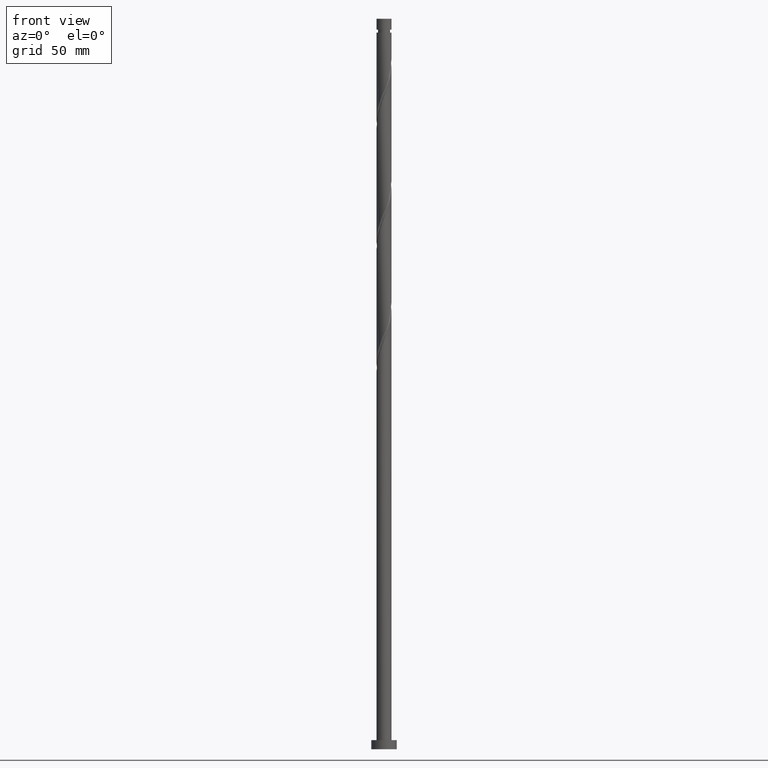
[diagram: clean part render]
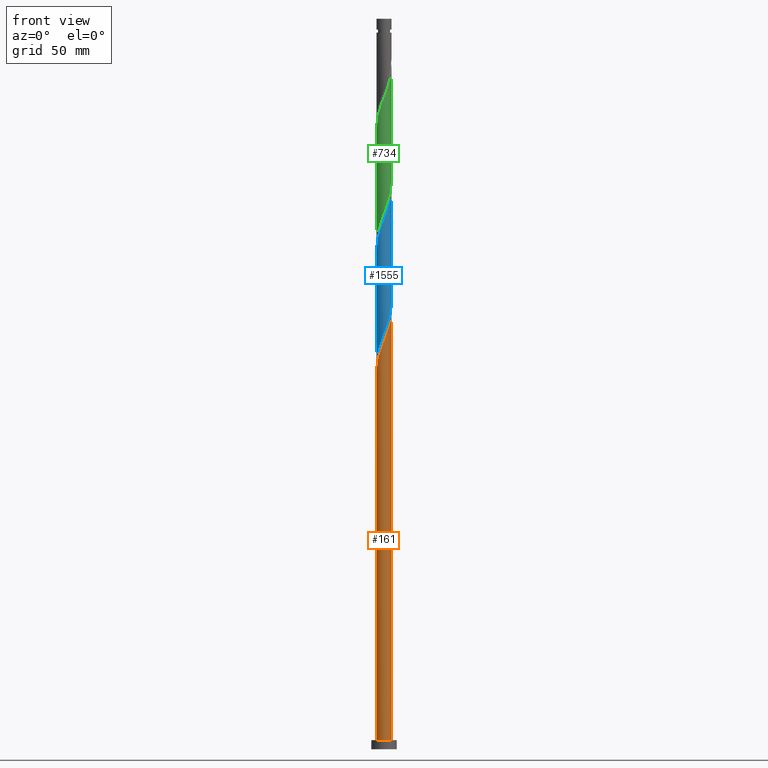
[diagram: same view with three faces highlighted in distinct colors, each labeled with its STEP entity id]
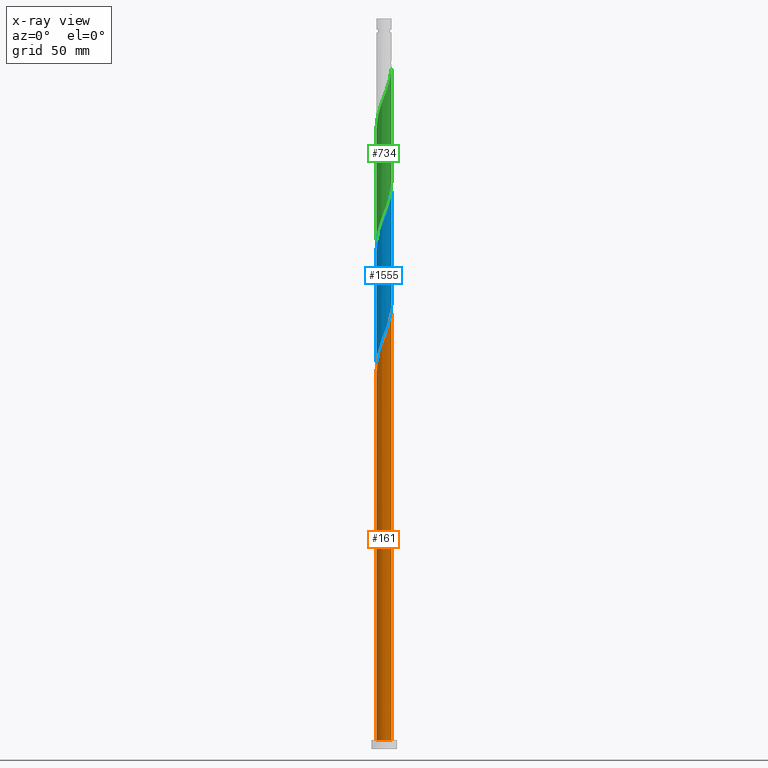
[diagram: x-ray of the same camera — body ghosted, the three highlighted faces saturated]
A machine part, front view with three faces highlighted in distinct colors.
The next image is the same camera in x-ray (body ghosted, the three faces saturated) — at least one of them is partly hidden behind the body in this view.
Their STEP definitions:

[orange] entity #161 — the highlighted cylindrical surface (edge-blend (fillet) strip) has radius 4.1 mm, axis along (-0, -0, -1).
#21 = DIRECTION ( 'NONE',  ( -0.000000000000000000, -0.000000000000000000, -1.000000000000000000 ) ) ;
#26 = CARTESIAN_POINT ( 'NONE',  ( -1.701652512147917351, -3.730198215631539860, 219.0670097021636025 ) ) ;
#33 = CARTESIAN_POINT ( 'NONE',  ( -3.910705279217199237, -1.231415534700930348, 210.1781208132747736 ) ) ;
#129 = VERTEX_POINT ( 'NONE', #1362 ) ;
#150 = AXIS2_PLACEMENT_3D ( 'NONE', #490, #193, #1756 ) ;
#161 = ADVANCED_FACE ( 'NONE', ( #1383 ), #308, .T. ) ;
#193 = DIRECTION ( 'NONE',  ( 0.000000000000000000, 0.000000000000000000, 1.000000000000000000 ) ) ;
#196 = CARTESIAN_POINT ( 'NONE',  ( -4.099999999999999645, 0.000000000000000000, 400.0000000000000000 ) ) ;
#225 = EDGE_CURVE ( 'NONE', #1762, #129, #1108, .T. ) ;
#233 = CARTESIAN_POINT ( 'NONE',  ( 3.750745190230568404, -1.711025689904787983, 235.7336763688302881 ) ) ;
#298 = VECTOR ( 'NONE', #836, 1000.000000000000000 ) ;
#308 = CYLINDRICAL_SURFACE ( 'NONE', #587, 4.099999999999999645 ) ;
#320 = EDGE_CURVE ( 'NONE', #1655, #1397, #353, .T. ) ;
#331 = CARTESIAN_POINT ( 'NONE',  ( -4.040132267286214329, -0.8203838469793626187, 209.0670097021636309 ) ) ;
#334 = CARTESIAN_POINT ( 'NONE',  ( 4.099999999999999645, 5.021051876504146399E-16, 400.0000000000000000 ) ) ;
#353 = LINE ( 'NONE', #196, #298 ) ;
#365 = CARTESIAN_POINT ( 'NONE',  ( 4.100000000000005862, -0.2335923235303701828, 239.6693084825909636 ) ) ;
#382 = CARTESIAN_POINT ( 'NONE',  ( 4.073468864823458269, -0.4656730691310441150, 239.0670097021636877 ) ) ;
#399 = ORIENTED_EDGE ( 'NONE', *, *, #469, .F. ) ;
#456 = CARTESIAN_POINT ( 'NONE',  ( -1.309592881304573853, -3.909049101608764065, 220.1781208132747452 ) ) ;
#469 = EDGE_CURVE ( 'NONE', #1655, #1762, #1350, .T. ) ;
#490 = CARTESIAN_POINT ( 'NONE',  ( 0.000000000000000000, 0.000000000000000000, 5.000000000000000000 ) ) ;
#551 = EDGE_CURVE ( 'NONE', #1397, #129, #1285, .T. ) ;
#587 = AXIS2_PLACEMENT_3D ( 'NONE', #737, #1830, #1734 ) ;
#617 = CARTESIAN_POINT ( 'NONE',  ( -3.569221300124404639, -2.017587497666035734, 212.4003430354970021 ) ) ;
#633 = CARTESIAN_POINT ( 'NONE',  ( -4.100000000000004974, -3.946381671055562687E-15, 206.9415664586421713 ) ) ;
#645 = VECTOR ( 'NONE', #21, 1000.000000000000000 ) ;
#655 = EDGE_LOOP ( 'NONE', ( #865, #399, #911, #982 ) ) ;
#665 = CARTESIAN_POINT ( 'NONE',  ( 2.730539385981639811, -3.088665254629401780, 231.2892319243858026 ) ) ;
#737 = CARTESIAN_POINT ( 'NONE',  ( 0.000000000000000000, 0.000000000000000000, 400.0000000000000000 ) ) ;
#773 = CARTESIAN_POINT ( 'NONE',  ( -0.4682381265810183213, -4.095906670124184856, 222.4003430354969737 ) ) ;
#836 = DIRECTION ( 'NONE',  ( -0.000000000000000000, -0.000000000000000000, -1.000000000000000000 ) ) ;
#865 = ORIENTED_EDGE ( 'NONE', *, *, #225, .F. ) ;
#911 = ORIENTED_EDGE ( 'NONE', *, *, #320, .T. ) ;
#924 = CARTESIAN_POINT ( 'NONE',  ( -4.100000000000004974, -0.1961603970756739534, 207.4501149842062375 ) ) ;
#935 = CARTESIAN_POINT ( 'NONE',  ( 0.3935808811299419951, -4.103753462814363040, 224.6225652577192022 ) ) ;
#950 = CARTESIAN_POINT ( 'NONE',  ( -3.071745223192162921, -2.715581205524182362, 214.6225652577192591 ) ) ;
#982 = ORIENTED_EDGE ( 'NONE', *, *, #551, .T. ) ;
#1004 = CARTESIAN_POINT ( 'NONE',  ( 4.024524653008617392, -0.8938118990468595371, 237.9558985910525166 ) ) ;
#1080 = CARTESIAN_POINT ( 'NONE',  ( 1.238198515724918902, -3.932246537185647206, 226.8447874799413739 ) ) ;
#1108 = LINE ( 'NONE', #334, #645 ) ;
#1114 = CARTESIAN_POINT ( 'NONE',  ( 3.531892677398866365, -2.082242568803238658, 234.6225652577192591 ) ) ;
#1149 = CARTESIAN_POINT ( 'NONE',  ( 4.100000000000004974, 2.481436959830391851E-15, 240.2748997919754856 ) ) ;
#1155 = CARTESIAN_POINT ( 'NONE',  ( 3.021789775274402956, -2.771062351165545223, 232.4003430354970021 ) ) ;
#1231 = CARTESIAN_POINT ( 'NONE',  ( -3.781278291148182813, -1.642447222422497077, 211.2892319243858879 ) ) ;
#1260 = CARTESIAN_POINT ( 'NONE',  ( -4.081272671962254961, -0.3914248038820652420, 207.9558985910525735 ) ) ;
#1271 = CARTESIAN_POINT ( 'NONE',  ( -4.100000000000004974, -3.946381671055562687E-15, 206.9415664586421713 ) ) ;
#1285 = CIRCLE ( 'NONE', #150, 4.099999999999999645 ) ;
#1295 = CARTESIAN_POINT ( 'NONE',  ( 4.100000000000004974, 2.481436959830391851E-15, 240.2748997919754856 ) ) ;
#1350 =( BOUNDED_CURVE ( )  B_SPLINE_CURVE ( 2, ( #633, #924, #1260, #331, #33, #1231, #617, #1862, #950, #1725, #1706, #1851, #26, #456, #1580, #773, #1548, #935, #1569, #1080, #1403, #1598, #1922, #665, #1155, #1913, #1114, #233, #1626, #1004, #382, #365, #1295 ),
 .UNSPECIFIED., .F., .T. ) 
 B_SPLINE_CURVE_WITH_KNOTS ( ( 3, 2, 2, 2, 2, 2, 2, 2, 2, 2, 2, 2, 2, 2, 2, 2, 3 ),
 ( 0.05452860127731149614, 0.05833333333333334814, 0.06666666666666665186, 0.07499999999999995559, 0.08333333333333337034, 0.09166666666666667407, 0.09999999999999997780, 0.1083333333333332815, 0.1166666666666666963, 0.1250000000000000000, 0.1333333333333333037, 0.1416666666666667185, 0.1500000000000000222, 0.1583333333333333259, 0.1666666666666666297, 0.1750000000000000444, 0.1795286012773115725 ),
 .UNSPECIFIED. ) 
 CURVE ( )  GEOMETRIC_REPRESENTATION_ITEM ( )  RATIONAL_B_SPLINE_CURVE ( ( 0.9066196499552388044, 0.9068171577856516397, 0.9090909090909504719, 0.9041108139711987457, 0.9090909090909504719, 0.9041108139711987457, 0.9090909090909504719, 0.9041108139711987457, 0.9090909090909504719, 0.9041108139711987457, 0.9090909090909504719, 0.9041108139711987457, 0.9090909090909504719, 0.9041108139711987457, 0.9090909090909504719, 0.9041108139711987457, 0.9090909090909504719, 0.9041108139711987457, 0.9090909090909504719, 0.9041108139711987457, 0.9090909090909504719, 0.9041108139711987457, 0.9090909090909504719, 0.9041108139711987457, 0.9090909090909504719, 0.9041108139711987457, 0.9090909090909504719, 0.9041108139711987457, 0.9090909090909504719, 0.9041108139711987457, 0.9090909090909504719, 0.9063845652764975780, 0.9066196499552388044 ) ) 
 REPRESENTATION_ITEM ( '' )  );
#1362 = CARTESIAN_POINT ( 'NONE',  ( 4.099999999999999645, 5.021051876504146399E-16, 5.000000000000000000 ) ) ;
#1380 = CARTESIAN_POINT ( 'NONE',  ( -4.099999999999999645, 0.000000000000000000, 5.000000000000000000 ) ) ;
#1383 = FACE_OUTER_BOUND ( 'NONE', #655, .T. ) ;
#1397 = VERTEX_POINT ( 'NONE', #1380 ) ;
#1403 = CARTESIAN_POINT ( 'NONE',  ( 1.633449724685977378, -3.760564053027596998, 227.9558985910525166 ) ) ;
#1548 = CARTESIAN_POINT ( 'NONE',  ( -0.03732862272553907901, -4.099830066469274392, 223.5114541466081164 ) ) ;
#1569 = CARTESIAN_POINT ( 'NONE',  ( 0.8158896984274310871, -4.018000000000005123, 225.7336763688303449 ) ) ;
#1580 = CARTESIAN_POINT ( 'NONE',  ( -0.8889155039427963922, -4.002477885866475127, 221.2892319243858594 ) ) ;
#1598 = CARTESIAN_POINT ( 'NONE',  ( 2.028700933647035853, -3.588881568869546346, 229.0670097021636877 ) ) ;
#1626 = CARTESIAN_POINT ( 'NONE',  ( 3.887634921619595119, -1.302418794475823205, 236.8447874799414592 ) ) ;
#1655 = VERTEX_POINT ( 'NONE', #1271 ) ;
#1706 = CARTESIAN_POINT ( 'NONE',  ( -2.440019140137481113, -3.294890983896551884, 216.8447874799414592 ) ) ;
#1725 = CARTESIAN_POINT ( 'NONE',  ( -2.786326137283699822, -3.038434638138789001, 215.7336763688302881 ) ) ;
#1734 = DIRECTION ( 'NONE',  ( -1.000000000000000000, 0.000000000000000000, 0.000000000000000000 ) ) ;
#1756 = DIRECTION ( 'NONE',  ( 1.000000000000000000, 0.000000000000000000, 0.000000000000000000 ) ) ;
#1762 = VERTEX_POINT ( 'NONE', #1149 ) ;
#1830 = DIRECTION ( 'NONE',  ( -0.000000000000000000, -0.000000000000000000, -1.000000000000000000 ) ) ;
#1851 = CARTESIAN_POINT ( 'NONE',  ( -2.093712142991261072, -3.551347329654315210, 217.9558985910525450 ) ) ;
#1862 = CARTESIAN_POINT ( 'NONE',  ( -3.357164309100626465, -2.392727772909574835, 213.5114541466081448 ) ) ;
#1913 = CARTESIAN_POINT ( 'NONE',  ( 3.313040164567162993, -2.453459447701689555, 233.5114541466081164 ) ) ;
#1922 = CARTESIAN_POINT ( 'NONE',  ( 2.379620159814337388, -3.338773411749475617, 230.1781208132748304 ) ) ;

[blue] entity #1555 — the highlighted cylindrical surface (edge-blend (fillet) strip) has radius 4.1 mm, axis along (-0, -0, -1).
#30 = VERTEX_POINT ( 'NONE', #1676 ) ;
#48 = VECTOR ( 'NONE', #1546, 1000.000000000000000 ) ;
#72 = CARTESIAN_POINT ( 'NONE',  ( -4.099999999999999645, 5.785036767797397422E-15, 211.1924529456851189 ) ) ;
#91 = CARTESIAN_POINT ( 'NONE',  ( -0.8158896984274314201, -4.017999999999998018, 225.7336763688303165 ) ) ;
#108 = CARTESIAN_POINT ( 'NONE',  ( 0.3935808811299419951, -4.103753462814363040, 291.2892319243858879 ) ) ;
#114 = CARTESIAN_POINT ( 'NONE',  ( -2.379620159814335612, -3.338773411749467623, 221.2892319243858310 ) ) ;
#120 = CARTESIAN_POINT ( 'NONE',  ( 2.730539385981639811, -3.088665254629401780, 297.9558985910524598 ) ) ;
#125 = CARTESIAN_POINT ( 'NONE',  ( 0.4682381265810162119, -4.095906670124179527, 229.0670097021636593 ) ) ;
#132 = CARTESIAN_POINT ( 'NONE',  ( -3.781278291148182813, -1.642447222422497077, 277.9558985910525735 ) ) ;
#142 = CARTESIAN_POINT ( 'NONE',  ( -2.093712142991261072, -3.551347329654315210, 284.6225652577191454 ) ) ;
#149 = CARTESIAN_POINT ( 'NONE',  ( -4.024524653008613839, -0.8938118990468537639, 213.5114541466080880 ) ) ;
#160 = CARTESIAN_POINT ( 'NONE',  ( 4.099999999999999645, 5.021051876504146399E-16, 400.0000000000000000 ) ) ;
#246 = CARTESIAN_POINT ( 'NONE',  ( 3.781278291148176596, -1.642447222422497743, 240.1781208132747167 ) ) ;
#265 = CARTESIAN_POINT ( 'NONE',  ( -0.4682381265810183213, -4.095906670124184856, 289.0670097021636593 ) ) ;
#270 = CARTESIAN_POINT ( 'NONE',  ( 3.071745223192156704, -2.715581205524181030, 236.8447874799414024 ) ) ;
#288 = CARTESIAN_POINT ( 'NONE',  ( -1.701652512147917351, -3.730198215631539860, 285.7336763688303449 ) ) ;
#294 = CARTESIAN_POINT ( 'NONE',  ( 0.03732862272553567201, -4.099830066469269063, 227.9558985910524882 ) ) ;
#304 = CARTESIAN_POINT ( 'NONE',  ( -4.099999999999999645, 0.000000000000000000, 400.0000000000000000 ) ) ;
#325 = CARTESIAN_POINT ( 'NONE',  ( -3.887634921619588901, -1.302418794475818542, 214.6225652577192022 ) ) ;
#327 = ORIENTED_EDGE ( 'NONE', *, *, #1401, .T. ) ;
#398 = DIRECTION ( 'NONE',  ( -0.000000000000000000, -0.000000000000000000, -1.000000000000000000 ) ) ;
#406 = CARTESIAN_POINT ( 'NONE',  ( 4.099999999999999645, 3.961330086476254581E-15, 244.5257862790184902 ) ) ;
#417 = CARTESIAN_POINT ( 'NONE',  ( -0.3935808811299449927, -4.103753462814356823, 226.8447874799414024 ) ) ;
#427 = CARTESIAN_POINT ( 'NONE',  ( 4.040132267286208112, -0.8203838469793630628, 242.4003430354969737 ) ) ;
#433 = EDGE_CURVE ( 'NONE', #630, #1891, #1981, .T. ) ;
#460 = AXIS2_PLACEMENT_3D ( 'NONE', #1019, #398, #1496 ) ;
#464 = LINE ( 'NONE', #160, #1615 ) ;
#474 = CARTESIAN_POINT ( 'NONE',  ( -4.073468864823452940, -0.4656730691310418391, 212.4003430354969737 ) ) ;
#478 = ORIENTED_EDGE ( 'NONE', *, *, #1181, .F. ) ;
#501 = CARTESIAN_POINT ( 'NONE',  ( 4.099999999999999645, 3.961330086476254581E-15, 244.5257862790184902 ) ) ;
#531 = CARTESIAN_POINT ( 'NONE',  ( 4.100000000000004974, 2.481436959830391851E-15, 306.9415664586421713 ) ) ;
#543 = FACE_OUTER_BOUND ( 'NONE', #1111, .T. ) ;
#553 = CARTESIAN_POINT ( 'NONE',  ( 3.357164309100618027, -2.392727772909574391, 237.9558985910525735 ) ) ;
#561 = CARTESIAN_POINT ( 'NONE',  ( 3.887634921619595119, -1.302418794475823205, 303.5114541466080595 ) ) ;
#568 = CARTESIAN_POINT ( 'NONE',  ( -1.238198515724919790, -3.932246537185640101, 224.6225652577191454 ) ) ;
#588 = CARTESIAN_POINT ( 'NONE',  ( 3.021789775274402956, -2.771062351165545223, 299.0670097021636593 ) ) ;
#593 = CARTESIAN_POINT ( 'NONE',  ( 2.440019140137474896, -3.294890983896549219, 234.6225652577191454 ) ) ;
#630 = VERTEX_POINT ( 'NONE', #501 ) ;
#707 = CARTESIAN_POINT ( 'NONE',  ( 0.8889155039427916183, -4.002477885866468910, 230.1781208132747736 ) ) ;
#719 = CARTESIAN_POINT ( 'NONE',  ( 4.081272671962249632, -0.3914248038820680176, 243.5114541466081164 ) ) ;
#726 =( BOUNDED_CURVE ( )  B_SPLINE_CURVE ( 2, ( #1509, #1520, #1542, #1375, #750, #132, #1842, #909, #1823, #1057, #1387, #142, #288, #1811, #1668, #265, #885, #108, #728, #1978, #1199, #1045, #1679, #120, #588, #1211, #1151, #1022, #561, #1299, #839, #1320, #1012 ),
 .UNSPECIFIED., .F., .T. ) 
 B_SPLINE_CURVE_WITH_KNOTS ( ( 3, 2, 2, 2, 2, 2, 2, 2, 2, 2, 2, 2, 2, 2, 2, 2, 3 ),
 ( 0.3045286012773115170, 0.3083333333333333481, 0.3166666666666666519, 0.3249999999999999556, 0.3333333333333333703, 0.3416666666666666741, 0.3499999999999999778, 0.3583333333333332815, 0.3666666666666666963, 0.3750000000000000000, 0.3833333333333333037, 0.3916666666666667185, 0.4000000000000000222, 0.4083333333333333259, 0.4166666666666666297, 0.4250000000000000444, 0.4295286012773110174 ),
 .UNSPECIFIED. ) 
 CURVE ( )  GEOMETRIC_REPRESENTATION_ITEM ( )  RATIONAL_B_SPLINE_CURVE ( ( 0.9066196499552388044, 0.9068171577856516397, 0.9090909090909504719, 0.9041108139711987457, 0.9090909090909504719, 0.9041108139711987457, 0.9090909090909504719, 0.9041108139711987457, 0.9090909090909504719, 0.9041108139711987457, 0.9090909090909504719, 0.9041108139711987457, 0.9090909090909504719, 0.9041108139711987457, 0.9090909090909504719, 0.9041108139711987457, 0.9090909090909504719, 0.9041108139711987457, 0.9090909090909504719, 0.9041108139711987457, 0.9090909090909504719, 0.9041108139711987457, 0.9090909090909504719, 0.9041108139711987457, 0.9090909090909504719, 0.9041108139711987457, 0.9090909090909504719, 0.9041108139711987457, 0.9090909090909504719, 0.9041108139711987457, 0.9090909090909504719, 0.9063845652764979111, 0.9066196499552388044 ) ) 
 REPRESENTATION_ITEM ( '' )  );
#728 = CARTESIAN_POINT ( 'NONE',  ( 0.8158896984274310871, -4.018000000000005123, 292.4003430354970305 ) ) ;
#735 = CARTESIAN_POINT ( 'NONE',  ( -2.730539385981638478, -3.088665254629396006, 220.1781208132747452 ) ) ;
#744 = CARTESIAN_POINT ( 'NONE',  ( -3.531892677398861480, -2.082242568803232441, 216.8447874799414308 ) ) ;
#750 = CARTESIAN_POINT ( 'NONE',  ( -3.910705279217199237, -1.231415534700930348, 276.8447874799414876 ) ) ;
#827 = ORIENTED_EDGE ( 'NONE', *, *, #433, .F. ) ;
#839 = CARTESIAN_POINT ( 'NONE',  ( 4.073468864823458269, -0.4656730691310441150, 305.7336763688304018 ) ) ;
#879 = CARTESIAN_POINT ( 'NONE',  ( 4.099999999999999645, -0.1961603970756786164, 244.0172377534544523 ) ) ;
#885 = CARTESIAN_POINT ( 'NONE',  ( -0.03732862272553907901, -4.099830066469274392, 290.1781208132748020 ) ) ;
#892 = CARTESIAN_POINT ( 'NONE',  ( -1.633449724685977822, -3.760564053027589893, 223.5114541466080595 ) ) ;
#909 = CARTESIAN_POINT ( 'NONE',  ( -3.357164309100626465, -2.392727772909574835, 280.1781208132746883 ) ) ;
#1012 = CARTESIAN_POINT ( 'NONE',  ( 4.100000000000004974, 2.481436959830391851E-15, 306.9415664586421713 ) ) ;
#1019 = CARTESIAN_POINT ( 'NONE',  ( 0.000000000000000000, 0.000000000000000000, 400.0000000000000000 ) ) ;
#1022 = CARTESIAN_POINT ( 'NONE',  ( 3.750745190230568404, -1.711025689904787983, 302.4003430354970874 ) ) ;
#1045 = CARTESIAN_POINT ( 'NONE',  ( 2.028700933647035853, -3.588881568869546346, 295.7336763688302312 ) ) ;
#1057 = CARTESIAN_POINT ( 'NONE',  ( -2.786326137283699822, -3.038434638138789001, 282.4003430354969169 ) ) ;
#1063 = CARTESIAN_POINT ( 'NONE',  ( 1.309592881304569190, -3.909049101608759180, 231.2892319243858594 ) ) ;
#1111 = EDGE_LOOP ( 'NONE', ( #1564, #478, #327, #827 ) ) ;
#1151 = CARTESIAN_POINT ( 'NONE',  ( 3.531892677398866365, -2.082242568803238658, 301.2892319243858310 ) ) ;
#1172 = CYLINDRICAL_SURFACE ( 'NONE', #460, 4.099999999999999645 ) ;
#1181 = EDGE_CURVE ( 'NONE', #30, #1874, #726, .T. ) ;
#1199 = CARTESIAN_POINT ( 'NONE',  ( 1.633449724685977378, -3.760564053027596998, 294.6225652577192591 ) ) ;
#1211 = CARTESIAN_POINT ( 'NONE',  ( 3.313040164567162993, -2.453459447701689555, 300.1781208132747452 ) ) ;
#1217 = CARTESIAN_POINT ( 'NONE',  ( 2.093712142991255298, -3.551347329654311658, 233.5114541466080880 ) ) ;
#1249 = CARTESIAN_POINT ( 'NONE',  ( -4.099999999999999645, -0.2335923235303701273, 211.7980442550696409 ) ) ;
#1299 = CARTESIAN_POINT ( 'NONE',  ( 4.024524653008617392, -0.8938118990468595371, 304.6225652577191454 ) ) ;
#1320 = CARTESIAN_POINT ( 'NONE',  ( 4.100000000000002309, -0.2335923235303986878, 306.3359751492575924 ) ) ;
#1335 = EDGE_CURVE ( 'NONE', #1874, #630, #464, .T. ) ;
#1368 = CARTESIAN_POINT ( 'NONE',  ( -3.750745190230562631, -1.711025689904783764, 215.7336763688303449 ) ) ;
#1375 = CARTESIAN_POINT ( 'NONE',  ( -4.040132267286214329, -0.8203838469793626187, 275.7336763688302881 ) ) ;
#1387 = CARTESIAN_POINT ( 'NONE',  ( -2.440019140137481113, -3.294890983896551884, 283.5114541466081164 ) ) ;
#1401 = EDGE_CURVE ( 'NONE', #30, #1891, #1847, .T. ) ;
#1409 = DIRECTION ( 'NONE',  ( -0.000000000000000000, -0.000000000000000000, -1.000000000000000000 ) ) ;
#1493 = CARTESIAN_POINT ( 'NONE',  ( 2.786326137283694937, -3.038434638138785449, 235.7336763688303165 ) ) ;
#1496 = DIRECTION ( 'NONE',  ( -1.000000000000000000, 0.000000000000000000, 0.000000000000000000 ) ) ;
#1509 = CARTESIAN_POINT ( 'NONE',  ( -4.100000000000004974, -3.946381671055562687E-15, 273.6082331253088569 ) ) ;
#1515 = CARTESIAN_POINT ( 'NONE',  ( -2.028700933647034965, -3.588881568869541461, 222.4003430354969453 ) ) ;
#1520 = CARTESIAN_POINT ( 'NONE',  ( -4.100000000000004974, -0.1961603970756749804, 274.1167816508728947 ) ) ;
#1526 = CARTESIAN_POINT ( 'NONE',  ( -3.313040164567161217, -2.453459447701683782, 217.9558985910524882 ) ) ;
#1542 = CARTESIAN_POINT ( 'NONE',  ( -4.081272671962254961, -0.3914248038820652420, 274.6225652577193159 ) ) ;
#1546 = DIRECTION ( 'NONE',  ( -0.000000000000000000, -0.000000000000000000, -1.000000000000000000 ) ) ;
#1555 = ADVANCED_FACE ( 'NONE', ( #543 ), #1172, .T. ) ;
#1564 = ORIENTED_EDGE ( 'NONE', *, *, #1335, .F. ) ;
#1615 = VECTOR ( 'NONE', #1409, 1000.000000000000000 ) ;
#1668 = CARTESIAN_POINT ( 'NONE',  ( -0.8889155039427963922, -4.002477885866475127, 287.9558985910525735 ) ) ;
#1673 = CARTESIAN_POINT ( 'NONE',  ( 1.701652512147912910, -3.730198215631534087, 232.4003430354970021 ) ) ;
#1676 = CARTESIAN_POINT ( 'NONE',  ( -4.100000000000004974, -3.946381671055562687E-15, 273.6082331253088569 ) ) ;
#1679 = CARTESIAN_POINT ( 'NONE',  ( 2.379620159814337388, -3.338773411749475617, 296.8447874799414876 ) ) ;
#1687 = CARTESIAN_POINT ( 'NONE',  ( -3.021789775274398959, -2.771062351165539450, 219.0670097021636309 ) ) ;
#1739 = CARTESIAN_POINT ( 'NONE',  ( -4.099999999999999645, 5.785036767797397422E-15, 211.1924529456851189 ) ) ;
#1811 = CARTESIAN_POINT ( 'NONE',  ( -1.309592881304573853, -3.909049101608764065, 286.8447874799414876 ) ) ;
#1823 = CARTESIAN_POINT ( 'NONE',  ( -3.071745223192162921, -2.715581205524182362, 281.2892319243858879 ) ) ;
#1842 = CARTESIAN_POINT ( 'NONE',  ( -3.569221300124404639, -2.017587497666035734, 279.0670097021636593 ) ) ;
#1847 = LINE ( 'NONE', #304, #48 ) ;
#1874 = VERTEX_POINT ( 'NONE', #531 ) ;
#1891 = VERTEX_POINT ( 'NONE', #72 ) ;
#1957 = CARTESIAN_POINT ( 'NONE',  ( 3.910705279217190800, -1.231415534700931902, 241.2892319243858310 ) ) ;
#1972 = CARTESIAN_POINT ( 'NONE',  ( 3.569221300124397978, -2.017587497666034846, 239.0670097021636593 ) ) ;
#1978 = CARTESIAN_POINT ( 'NONE',  ( 1.238198515724918902, -3.932246537185647206, 293.5114541466081164 ) ) ;
#1981 =( BOUNDED_CURVE ( )  B_SPLINE_CURVE ( 2, ( #406, #879, #719, #427, #1957, #246, #1972, #553, #270, #1493, #593, #1217, #1673, #1063, #707, #125, #294, #417, #91, #568, #892, #1515, #114, #735, #1687, #1526, #744, #1368, #325, #149, #474, #1249, #1739 ),
 .UNSPECIFIED., .F., .T. ) 
 B_SPLINE_CURVE_WITH_KNOTS ( ( 3, 2, 2, 2, 2, 2, 2, 2, 2, 2, 2, 2, 2, 2, 2, 2, 3 ),
 ( 0.8045286012773115170, 0.8083333333333333481, 0.8166666666666666519, 0.8249999999999999556, 0.8333333333333333703, 0.8416666666666666741, 0.8499999999999999778, 0.8583333333333332815, 0.8666666666666666963, 0.8750000000000000000, 0.8833333333333333037, 0.8916666666666667185, 0.9000000000000000222, 0.9083333333333333259, 0.9166666666666666297, 0.9250000000000000444, 0.9295286012773115170 ),
 .UNSPECIFIED. ) 
 CURVE ( )  GEOMETRIC_REPRESENTATION_ITEM ( )  RATIONAL_B_SPLINE_CURVE ( ( 0.9066196499552329202, 0.9068171577856456445, 0.9090909090909445878, 0.9041108139711927505, 0.9090909090909445878, 0.9041108139711927505, 0.9090909090909445878, 0.9041108139711927505, 0.9090909090909445878, 0.9041108139711927505, 0.9090909090909445878, 0.9041108139711927505, 0.9090909090909445878, 0.9041108139711927505, 0.9090909090909445878, 0.9041108139711927505, 0.9090909090909445878, 0.9041108139711927505, 0.9090909090909445878, 0.9041108139711927505, 0.9090909090909445878, 0.9041108139711927505, 0.9090909090909445878, 0.9041108139711927505, 0.9090909090909445878, 0.9041108139711927505, 0.9090909090909445878, 0.9041108139711927505, 0.9090909090909445878, 0.9041108139711927505, 0.9090909090909445878, 0.9063845652764916938, 0.9066196499552329202 ) ) 
 REPRESENTATION_ITEM ( '' )  );

[green] entity #734 — the highlighted cylindrical surface (edge-blend (fillet) strip) has radius 4.1 mm, axis along (-0, -0, -1).
#7 = ORIENTED_EDGE ( 'NONE', *, *, #1784, .T. ) ;
#8 = CARTESIAN_POINT ( 'NONE',  ( -4.073468864823452940, -0.4656730691310418391, 279.0670097021636025 ) ) ;
#70 = CARTESIAN_POINT ( 'NONE',  ( -3.569221300124404639, -2.017587497666035734, 345.7336763688303449 ) ) ;
#81 = CARTESIAN_POINT ( 'NONE',  ( -1.701652512147917351, -3.730198215631539860, 352.4003430354970305 ) ) ;
#134 = CARTESIAN_POINT ( 'NONE',  ( 4.040132267286208112, -0.8203838469793630628, 309.0670097021637162 ) ) ;
#136 = CARTESIAN_POINT ( 'NONE',  ( 4.073468864823458269, -0.4656730691310441150, 372.4003430354970305 ) ) ;
#153 = CARTESIAN_POINT ( 'NONE',  ( 4.099999999999999645, -0.1961603970756671811, 310.6839044201211095 ) ) ;
#158 = CARTESIAN_POINT ( 'NONE',  ( -4.100000000000001421, -0.2335923235303587198, 278.4647109217362413 ) ) ;
#302 = CARTESIAN_POINT ( 'NONE',  ( -3.313040164567161217, -2.453459447701683782, 284.6225652577192591 ) ) ;
#313 = CARTESIAN_POINT ( 'NONE',  ( -1.238198515724919790, -3.932246537185640101, 291.2892319243859447 ) ) ;
#322 = CARTESIAN_POINT ( 'NONE',  ( 3.071745223192156704, -2.715581205524181030, 303.5114541466080595 ) ) ;
#329 = CARTESIAN_POINT ( 'NONE',  ( 3.531892677398866365, -2.082242568803238658, 367.9558985910525735 ) ) ;
#336 = CARTESIAN_POINT ( 'NONE',  ( 0.03732862272553567201, -4.099830066469269063, 294.6225652577191454 ) ) ;
#355 = ORIENTED_EDGE ( 'NONE', *, *, #1272, .F. ) ;
#384 = CARTESIAN_POINT ( 'NONE',  ( -4.040132267286214329, -0.8203838469793626187, 342.4003430354969169 ) ) ;
#387 = CARTESIAN_POINT ( 'NONE',  ( 4.099999999999999645, 5.021051876504146399E-16, 400.0000000000000000 ) ) ;
#392 = DIRECTION ( 'NONE',  ( -1.000000000000000000, 0.000000000000000000, 0.000000000000000000 ) ) ;
#462 = CARTESIAN_POINT ( 'NONE',  ( -2.730539385981638478, -3.088665254629396006, 286.8447874799413739 ) ) ;
#471 = CARTESIAN_POINT ( 'NONE',  ( 3.910705279217190800, -1.231415534700931902, 307.9558985910525735 ) ) ;
#479 = CARTESIAN_POINT ( 'NONE',  ( -0.8158896984274314201, -4.017999999999998018, 292.4003430354969737 ) ) ;
#504 = DIRECTION ( 'NONE',  ( -0.000000000000000000, -0.000000000000000000, -1.000000000000000000 ) ) ;
#530 = CARTESIAN_POINT ( 'NONE',  ( -2.440019140137481113, -3.294890983896551884, 350.1781208132748020 ) ) ;
#563 = VECTOR ( 'NONE', #1770, 1000.000000000000000 ) ;
#591 = DIRECTION ( 'NONE',  ( -0.000000000000000000, -0.000000000000000000, -1.000000000000000000 ) ) ;
#615 = CARTESIAN_POINT ( 'NONE',  ( 4.100000000000004974, -0.2335923235303730694, 373.0026418159242212 ) ) ;
#624 = CARTESIAN_POINT ( 'NONE',  ( 2.440019140137474896, -3.294890983896549219, 301.2892319243857742 ) ) ;
#631 = CARTESIAN_POINT ( 'NONE',  ( 2.093712142991255298, -3.551347329654311658, 300.1781208132748020 ) ) ;
#646 = VERTEX_POINT ( 'NONE', #1775 ) ;
#657 = AXIS2_PLACEMENT_3D ( 'NONE', #819, #591, #392 ) ;
#686 = CARTESIAN_POINT ( 'NONE',  ( -3.357164309100626465, -2.392727772909574835, 346.8447874799414876 ) ) ;
#698 = CARTESIAN_POINT ( 'NONE',  ( -3.910705279217199237, -1.231415534700930348, 343.5114541466081164 ) ) ;
#734 = ADVANCED_FACE ( 'NONE', ( #975 ), #1605, .T. ) ;
#762 = CARTESIAN_POINT ( 'NONE',  ( 3.781278291148176596, -1.642447222422497743, 306.8447874799414308 ) ) ;
#764 = CARTESIAN_POINT ( 'NONE',  ( 3.313040164567162993, -2.453459447701689555, 366.8447874799414876 ) ) ;
#770 = CARTESIAN_POINT ( 'NONE',  ( -3.021789775274398959, -2.771062351165539450, 285.7336763688302312 ) ) ;
#789 = CARTESIAN_POINT ( 'NONE',  ( 0.4682381265810162119, -4.095906670124179527, 295.7336763688301744 ) ) ;
#819 = CARTESIAN_POINT ( 'NONE',  ( 0.000000000000000000, 0.000000000000000000, 400.0000000000000000 ) ) ;
#844 = CARTESIAN_POINT ( 'NONE',  ( -4.081272671962254961, -0.3914248038820652420, 341.2892319243859447 ) ) ;
#872 = EDGE_LOOP ( 'NONE', ( #1059, #355, #7, #1273 ) ) ;
#888 = EDGE_CURVE ( 'NONE', #1693, #1049, #1207, .T. ) ;
#921 = CARTESIAN_POINT ( 'NONE',  ( -3.531892677398861480, -2.082242568803232441, 283.5114541466081164 ) ) ;
#933 = CARTESIAN_POINT ( 'NONE',  ( 1.633449724685977378, -3.760564053027596998, 361.2892319243859447 ) ) ;
#941 = CARTESIAN_POINT ( 'NONE',  ( 4.099999999999999645, 3.961330086476254581E-15, 311.1924529456850905 ) ) ;
#970 = CARTESIAN_POINT ( 'NONE',  ( -4.099999999999999645, 0.000000000000000000, 400.0000000000000000 ) ) ;
#975 = FACE_OUTER_BOUND ( 'NONE', #872, .T. ) ;
#980 = LINE ( 'NONE', #970, #1442 ) ;
#1049 = VERTEX_POINT ( 'NONE', #1790 ) ;
#1059 = ORIENTED_EDGE ( 'NONE', *, *, #1062, .F. ) ;
#1062 = EDGE_CURVE ( 'NONE', #1728, #1693, #1142, .T. ) ;
#1078 = CARTESIAN_POINT ( 'NONE',  ( 3.357164309100618027, -2.392727772909574391, 304.6225652577192022 ) ) ;
#1094 = CARTESIAN_POINT ( 'NONE',  ( -4.099999999999999645, 5.785036767797397422E-15, 277.8591196123516625 ) ) ;
#1095 = CARTESIAN_POINT ( 'NONE',  ( 3.887634921619595119, -1.302418794475823205, 370.1781208132748588 ) ) ;
#1138 = CARTESIAN_POINT ( 'NONE',  ( 4.099999999999999645, 3.961330086476254581E-15, 311.1924529456850905 ) ) ;
#1141 =( BOUNDED_CURVE ( )  B_SPLINE_CURVE ( 2, ( #1651, #1304, #844, #384, #698, #1924, #70, #686, #1314, #1936, #530, #1157, #81, #1638, #1325, #1278, #1440, #1705, #1696, #1714, #933, #2014, #1723, #1537, #1258, #764, #329, #1559, #1095, #1400, #136, #615, #1869 ),
 .UNSPECIFIED., .F., .T. ) 
 B_SPLINE_CURVE_WITH_KNOTS ( ( 3, 2, 2, 2, 2, 2, 2, 2, 2, 2, 2, 2, 2, 2, 2, 2, 3 ),
 ( 0.5545286012773116280, 0.5583333333333333481, 0.5666666666666666519, 0.5749999999999999556, 0.5833333333333332593, 0.5916666666666666741, 0.5999999999999999778, 0.6083333333333333925, 0.6166666666666666963, 0.6250000000000000000, 0.6333333333333333037, 0.6416666666666666075, 0.6500000000000000222, 0.6583333333333333259, 0.6666666666666667407, 0.6750000000000000444, 0.6795286012773115170 ),
 .UNSPECIFIED. ) 
 CURVE ( )  GEOMETRIC_REPRESENTATION_ITEM ( )  RATIONAL_B_SPLINE_CURVE ( ( 0.9066196499552388044, 0.9068171577856516397, 0.9090909090909504719, 0.9041108139711987457, 0.9090909090909504719, 0.9041108139711987457, 0.9090909090909504719, 0.9041108139711987457, 0.9090909090909504719, 0.9041108139711987457, 0.9090909090909504719, 0.9041108139711987457, 0.9090909090909504719, 0.9041108139711987457, 0.9090909090909504719, 0.9041108139711987457, 0.9090909090909504719, 0.9041108139711987457, 0.9090909090909504719, 0.9041108139711987457, 0.9090909090909504719, 0.9041108139711987457, 0.9090909090909504719, 0.9041108139711987457, 0.9090909090909504719, 0.9041108139711987457, 0.9090909090909504719, 0.9041108139711987457, 0.9090909090909504719, 0.9041108139711987457, 0.9090909090909504719, 0.9063845652764975780, 0.9066196499552388044 ) ) 
 REPRESENTATION_ITEM ( '' )  );
#1142 = LINE ( 'NONE', #387, #563 ) ;
#1157 = CARTESIAN_POINT ( 'NONE',  ( -2.093712142991261072, -3.551347329654315210, 351.2892319243858310 ) ) ;
#1207 =( BOUNDED_CURVE ( )  B_SPLINE_CURVE ( 2, ( #941, #153, #1378, #134, #471, #762, #1721, #1078, #322, #2012, #624, #631, #1712, #1227, #1845, #789, #336, #1565, #479, #313, #1557, #1883, #1267, #462, #770, #302, #921, #1544, #2002, #1578, #8, #158, #1094 ),
 .UNSPECIFIED., .F., .T. ) 
 B_SPLINE_CURVE_WITH_KNOTS ( ( 3, 2, 2, 2, 2, 2, 2, 2, 2, 2, 2, 2, 2, 2, 2, 2, 3 ),
 ( 0.5545286012773112949, 0.5583333333333333481, 0.5666666666666666519, 0.5749999999999999556, 0.5833333333333333703, 0.5916666666666666741, 0.5999999999999999778, 0.6083333333333332815, 0.6166666666666666963, 0.6250000000000000000, 0.6333333333333333037, 0.6416666666666667185, 0.6500000000000000222, 0.6583333333333333259, 0.6666666666666666297, 0.6750000000000000444, 0.6795286012773117390 ),
 .UNSPECIFIED. ) 
 CURVE ( )  GEOMETRIC_REPRESENTATION_ITEM ( )  RATIONAL_B_SPLINE_CURVE ( ( 0.9066196499552328092, 0.9068171577856455334, 0.9090909090909445878, 0.9041108139711927505, 0.9090909090909445878, 0.9041108139711927505, 0.9090909090909445878, 0.9041108139711927505, 0.9090909090909445878, 0.9041108139711927505, 0.9090909090909445878, 0.9041108139711927505, 0.9090909090909445878, 0.9041108139711927505, 0.9090909090909445878, 0.9041108139711927505, 0.9090909090909445878, 0.9041108139711927505, 0.9090909090909445878, 0.9041108139711927505, 0.9090909090909445878, 0.9041108139711927505, 0.9090909090909445878, 0.9041108139711927505, 0.9090909090909445878, 0.9041108139711927505, 0.9090909090909445878, 0.9041108139711927505, 0.9090909090909445878, 0.9041108139711927505, 0.9090909090909445878, 0.9063845652764915828, 0.9066196499552329202 ) ) 
 REPRESENTATION_ITEM ( '' )  );
#1227 = CARTESIAN_POINT ( 'NONE',  ( 1.309592881304569190, -3.909049101608759180, 297.9558985910525166 ) ) ;
#1258 = CARTESIAN_POINT ( 'NONE',  ( 3.021789775274402956, -2.771062351165545223, 365.7336763688304586 ) ) ;
#1267 = CARTESIAN_POINT ( 'NONE',  ( -2.379620159814335612, -3.338773411749467623, 287.9558985910524598 ) ) ;
#1272 = EDGE_CURVE ( 'NONE', #646, #1728, #1141, .T. ) ;
#1273 = ORIENTED_EDGE ( 'NONE', *, *, #888, .F. ) ;
#1278 = CARTESIAN_POINT ( 'NONE',  ( -0.4682381265810183213, -4.095906670124184856, 355.7336763688302312 ) ) ;
#1304 = CARTESIAN_POINT ( 'NONE',  ( -4.100000000000004974, -0.1961603970756806981, 340.7834483175396372 ) ) ;
#1314 = CARTESIAN_POINT ( 'NONE',  ( -3.071745223192162921, -2.715581205524182362, 347.9558985910525735 ) ) ;
#1325 = CARTESIAN_POINT ( 'NONE',  ( -0.8889155039427963922, -4.002477885866475127, 354.6225652577192022 ) ) ;
#1378 = CARTESIAN_POINT ( 'NONE',  ( 4.081272671962249632, -0.3914248038820680176, 310.1781208132747452 ) ) ;
#1400 = CARTESIAN_POINT ( 'NONE',  ( 4.024524653008617392, -0.8938118990468595371, 371.2892319243858310 ) ) ;
#1440 = CARTESIAN_POINT ( 'NONE',  ( -0.03732862272553907901, -4.099830066469274392, 356.8447874799414876 ) ) ;
#1442 = VECTOR ( 'NONE', #504, 1000.000000000000000 ) ;
#1537 = CARTESIAN_POINT ( 'NONE',  ( 2.730539385981639811, -3.088665254629401780, 364.6225652577192022 ) ) ;
#1544 = CARTESIAN_POINT ( 'NONE',  ( -3.750745190230562631, -1.711025689904783764, 282.4003430354970305 ) ) ;
#1557 = CARTESIAN_POINT ( 'NONE',  ( -1.633449724685977822, -3.760564053027589893, 290.1781208132746883 ) ) ;
#1559 = CARTESIAN_POINT ( 'NONE',  ( 3.750745190230568404, -1.711025689904787983, 369.0670097021636025 ) ) ;
#1565 = CARTESIAN_POINT ( 'NONE',  ( -0.3935808811299449927, -4.103753462814356823, 293.5114541466081164 ) ) ;
#1578 = CARTESIAN_POINT ( 'NONE',  ( -4.024524653008613839, -0.8938118990468537639, 280.1781208132747452 ) ) ;
#1605 = CYLINDRICAL_SURFACE ( 'NONE', #657, 4.099999999999999645 ) ;
#1638 = CARTESIAN_POINT ( 'NONE',  ( -1.309592881304573853, -3.909049101608764065, 353.5114541466081164 ) ) ;
#1651 = CARTESIAN_POINT ( 'NONE',  ( -4.100000000000004974, -6.607199615933934624E-15, 340.2748997919755425 ) ) ;
#1693 = VERTEX_POINT ( 'NONE', #1138 ) ;
#1696 = CARTESIAN_POINT ( 'NONE',  ( 0.8158896984274310871, -4.018000000000005123, 359.0670097021637162 ) ) ;
#1705 = CARTESIAN_POINT ( 'NONE',  ( 0.3935808811299419951, -4.103753462814363040, 357.9558985910525735 ) ) ;
#1712 = CARTESIAN_POINT ( 'NONE',  ( 1.701652512147912910, -3.730198215631534087, 299.0670097021636025 ) ) ;
#1714 = CARTESIAN_POINT ( 'NONE',  ( 1.238198515724918902, -3.932246537185647206, 360.1781208132748020 ) ) ;
#1721 = CARTESIAN_POINT ( 'NONE',  ( 3.569221300124397978, -2.017587497666034846, 305.7336763688302881 ) ) ;
#1723 = CARTESIAN_POINT ( 'NONE',  ( 2.379620159814337388, -3.338773411749475617, 363.5114541466080595 ) ) ;
#1728 = VERTEX_POINT ( 'NONE', #1792 ) ;
#1770 = DIRECTION ( 'NONE',  ( -0.000000000000000000, -0.000000000000000000, -1.000000000000000000 ) ) ;
#1775 = CARTESIAN_POINT ( 'NONE',  ( -4.100000000000004974, -6.607199615933934624E-15, 340.2748997919755425 ) ) ;
#1784 = EDGE_CURVE ( 'NONE', #646, #1049, #980, .T. ) ;
#1790 = CARTESIAN_POINT ( 'NONE',  ( -4.099999999999999645, 5.785036767797397422E-15, 277.8591196123517193 ) ) ;
#1792 = CARTESIAN_POINT ( 'NONE',  ( 4.100000000000005862, -5.829882014059354776E-16, 373.6082331253088569 ) ) ;
#1845 = CARTESIAN_POINT ( 'NONE',  ( 0.8889155039427916183, -4.002477885866468910, 296.8447874799414308 ) ) ;
#1869 = CARTESIAN_POINT ( 'NONE',  ( 4.100000000000005862, -5.829882014059354776E-16, 373.6082331253088000 ) ) ;
#1883 = CARTESIAN_POINT ( 'NONE',  ( -2.028700933647034965, -3.588881568869541461, 289.0670097021636593 ) ) ;
#1924 = CARTESIAN_POINT ( 'NONE',  ( -3.781278291148182813, -1.642447222422497077, 344.6225652577192022 ) ) ;
#1936 = CARTESIAN_POINT ( 'NONE',  ( -2.786326137283699822, -3.038434638138789001, 349.0670097021637162 ) ) ;
#2002 = CARTESIAN_POINT ( 'NONE',  ( -3.887634921619588901, -1.302418794475818542, 281.2892319243858879 ) ) ;
#2012 = CARTESIAN_POINT ( 'NONE',  ( 2.786326137283694937, -3.038434638138785449, 302.4003430354971442 ) ) ;
#2014 = CARTESIAN_POINT ( 'NONE',  ( 2.028700933647035853, -3.588881568869546346, 362.4003430354968600 ) ) ;